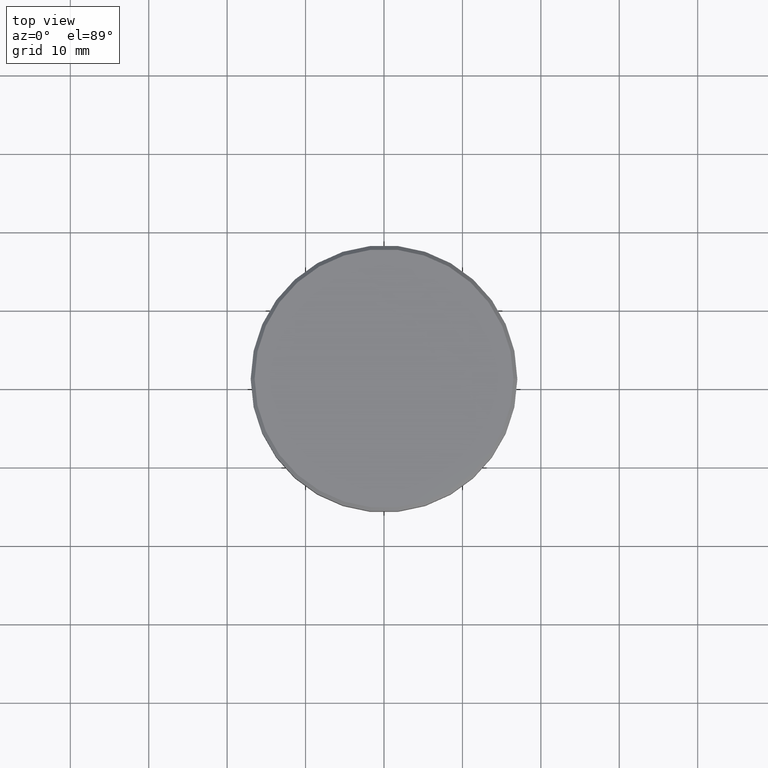
[diagram: clean part render]
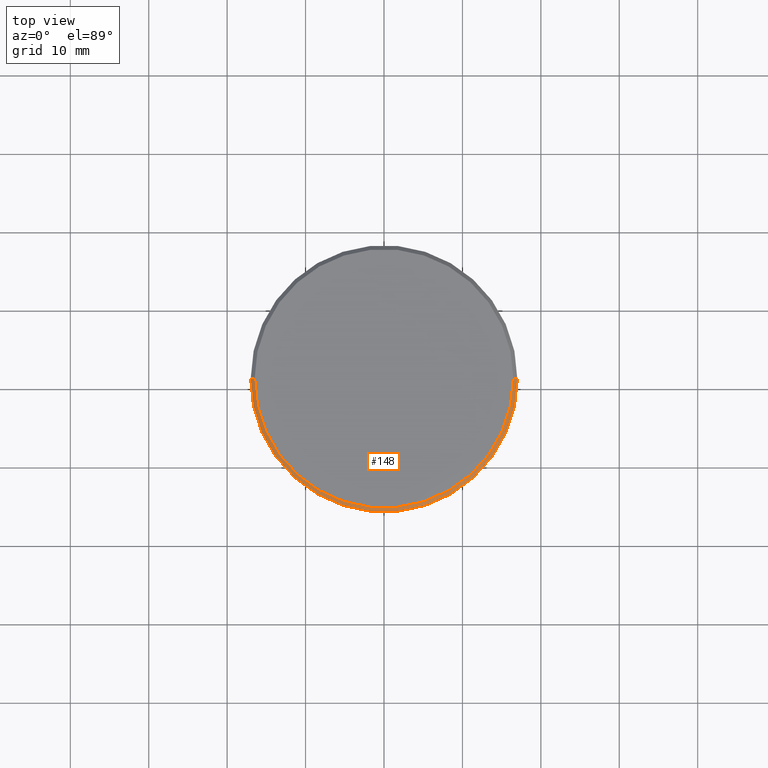
[diagram: same view with one face highlighted and labeled with its STEP entity id]
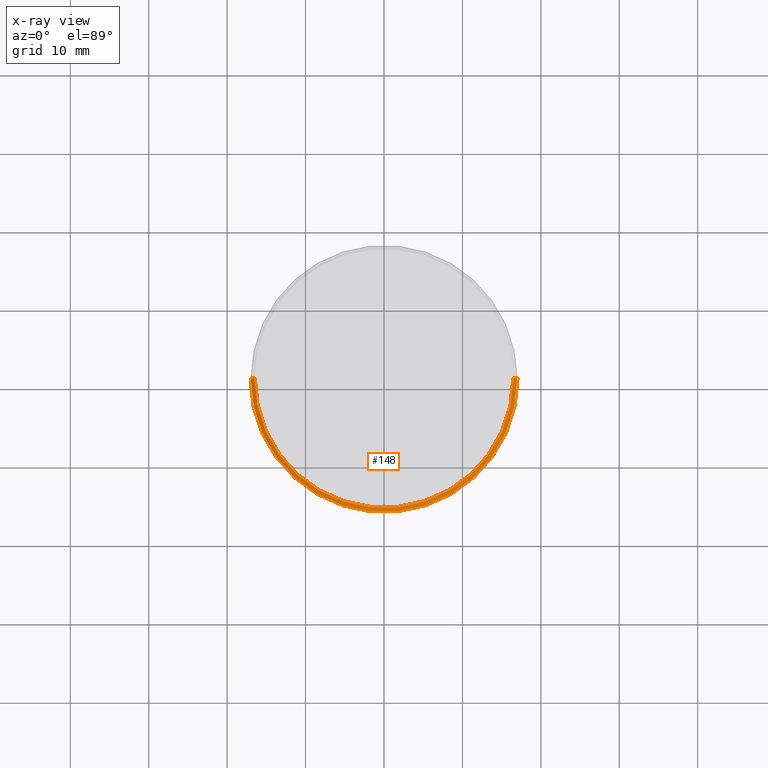
[diagram: x-ray of the same camera — body ghosted, the highlighted face saturated]
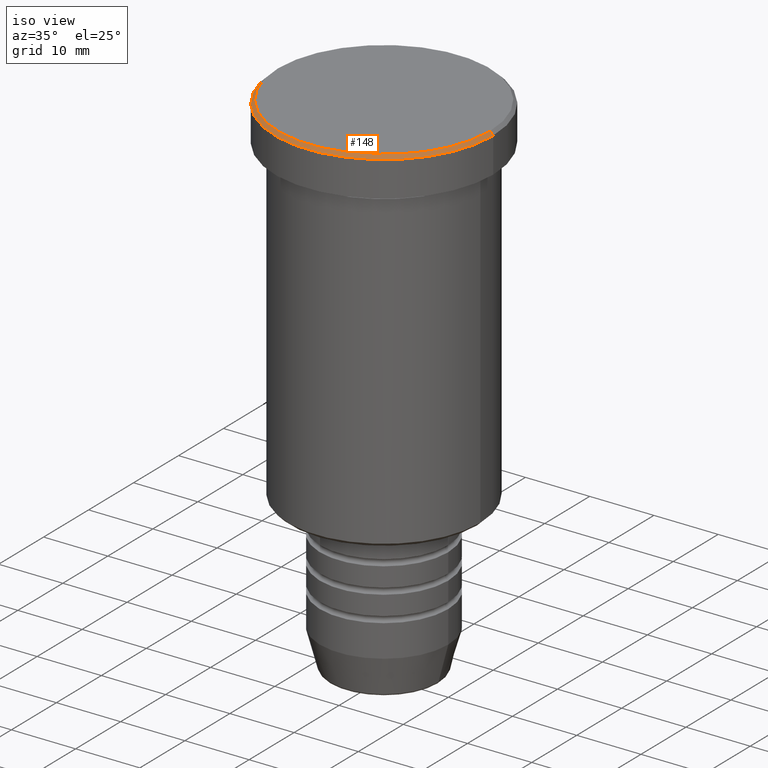
[diagram: same view with one face highlighted and labeled with its STEP entity id]
A machine part, top view. The second image highlights one B-rep face of the part: STEP entity #148.
The next image is the same camera in x-ray: the body ghosted, the highlighted face saturated — about 0% of this face is hidden behind the body in this view.
A second angle (iso view) of the same face is appended — the face is thin or edge-on in the first view.
In plain terms, the highlighted conical surface has half-angle 45 deg.
Its self-contained STEP definition (entity closure, byte-faithful):
#3 = VERTEX_POINT ( 'NONE', #611 ) ;
#42 = VECTOR ( 'NONE', #210, 1000.000000000000000 ) ;
#70 = EDGE_CURVE ( 'NONE', #3, #495, #1143, .T. ) ;
#83 = FACE_OUTER_BOUND ( 'NONE', #448, .T. ) ;
#86 = CIRCLE ( 'NONE', #129, 16.50000000000000000 ) ;
#129 = AXIS2_PLACEMENT_3D ( 'NONE', #832, #644, #1103 ) ;
#148 = ADVANCED_FACE ( 'NONE', ( #83 ), #784, .T. ) ;
#180 = ORIENTED_EDGE ( 'NONE', *, *, #70, .T. ) ;
#202 = CIRCLE ( 'NONE', #645, 17.00000000000000000 ) ;
#203 = DIRECTION ( 'NONE',  ( 1.000000000000000000, 0.000000000000000000, 0.000000000000000000 ) ) ;
#210 = DIRECTION ( 'NONE',  ( 0.7071067811865426878, 8.659560562354874926E-17, -0.7071067811865524577 ) ) ;
#305 = ORIENTED_EDGE ( 'NONE', *, *, #947, .F. ) ;
#331 = VERTEX_POINT ( 'NONE', #836 ) ;
#345 = EDGE_CURVE ( 'NONE', #331, #619, #815, .T. ) ;
#448 = EDGE_LOOP ( 'NONE', ( #1019, #922, #180, #305 ) ) ;
#453 = CARTESIAN_POINT ( 'NONE',  ( 0.000000000000000000, 0.000000000000000000, 0.000000000000000000 ) ) ;
#495 = VERTEX_POINT ( 'NONE', #565 ) ;
#496 = EDGE_CURVE ( 'NONE', #3, #331, #86, .T. ) ;
#523 = DIRECTION ( 'NONE',  ( -0.7071067811865426878, 0.000000000000000000, -0.7071067811865524577 ) ) ;
#565 = CARTESIAN_POINT ( 'NONE',  ( -17.00000000000000000, 2.081899558550500280E-15, -0.5000000000000073275 ) ) ;
#611 = CARTESIAN_POINT ( 'NONE',  ( -16.50000000000000000, 0.000000000000000000, 0.000000000000000000 ) ) ;
#619 = VERTEX_POINT ( 'NONE', #882 ) ;
#620 = DIRECTION ( 'NONE',  ( -1.000000000000000000, 0.000000000000000000, 0.000000000000000000 ) ) ;
#644 = DIRECTION ( 'NONE',  ( -0.000000000000000000, -0.000000000000000000, 1.000000000000000000 ) ) ;
#645 = AXIS2_PLACEMENT_3D ( 'NONE', #663, #829, #203 ) ;
#663 = CARTESIAN_POINT ( 'NONE',  ( 0.000000000000000000, 0.000000000000000000, -0.5000000000000073275 ) ) ;
#784 = CONICAL_SURFACE ( 'NONE', #972, 16.50000000000000000, 0.7853981633974415066 ) ;
#815 = LINE ( 'NONE', #1109, #42 ) ;
#828 = DIRECTION ( 'NONE',  ( 0.000000000000000000, 0.000000000000000000, -1.000000000000000000 ) ) ;
#829 = DIRECTION ( 'NONE',  ( 0.000000000000000000, 0.000000000000000000, -1.000000000000000000 ) ) ;
#832 = CARTESIAN_POINT ( 'NONE',  ( 0.000000000000000000, 0.000000000000000000, 0.000000000000000000 ) ) ;
#836 = CARTESIAN_POINT ( 'NONE',  ( 16.50000000000000000, 2.051283388571816887E-15, 0.000000000000000000 ) ) ;
#882 = CARTESIAN_POINT ( 'NONE',  ( 17.00000000000000000, 0.000000000000000000, -0.5000000000000073275 ) ) ;
#890 = CARTESIAN_POINT ( 'NONE',  ( -16.50000000000000000, 0.000000000000000000, 0.000000000000000000 ) ) ;
#922 = ORIENTED_EDGE ( 'NONE', *, *, #496, .F. ) ;
#947 = EDGE_CURVE ( 'NONE', #619, #495, #202, .T. ) ;
#972 = AXIS2_PLACEMENT_3D ( 'NONE', #453, #828, #620 ) ;
#1009 = VECTOR ( 'NONE', #523, 1000.000000000000000 ) ;
#1019 = ORIENTED_EDGE ( 'NONE', *, *, #345, .F. ) ;
#1103 = DIRECTION ( 'NONE',  ( 1.000000000000000000, 0.000000000000000000, 0.000000000000000000 ) ) ;
#1109 = CARTESIAN_POINT ( 'NONE',  ( 16.50000000000000000, 2.020667218593133100E-15, 0.000000000000000000 ) ) ;
#1143 = LINE ( 'NONE', #890, #1009 ) ;